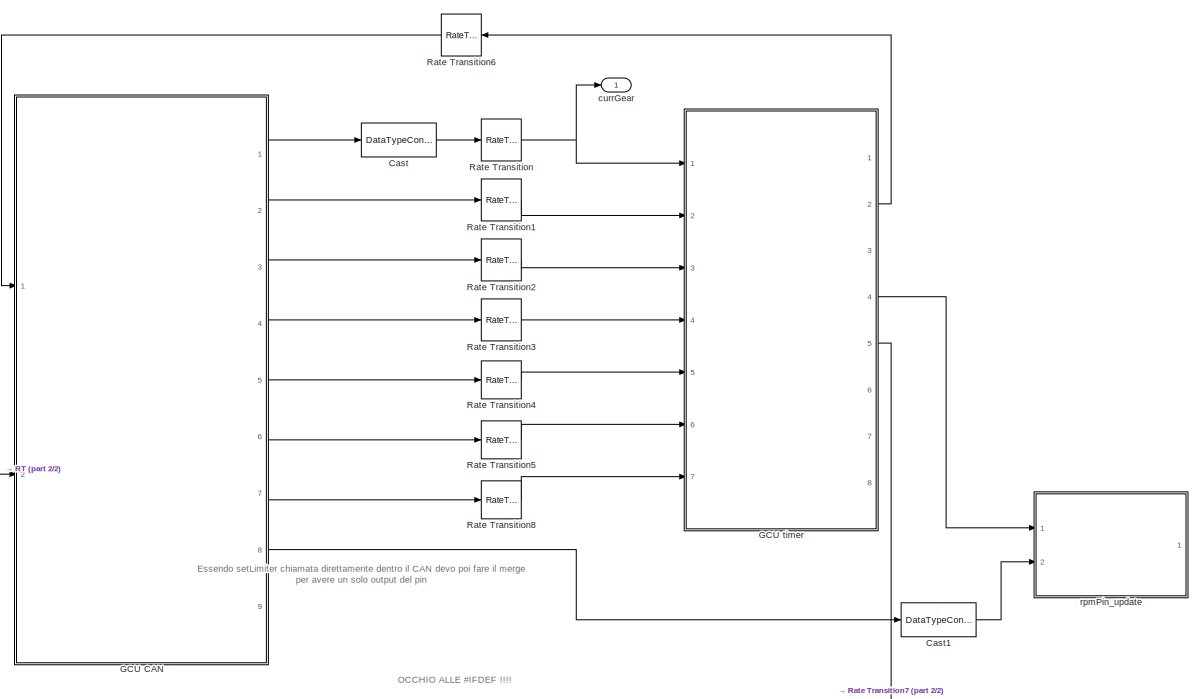
[diagram: root canvas - part 1/2, top right region]
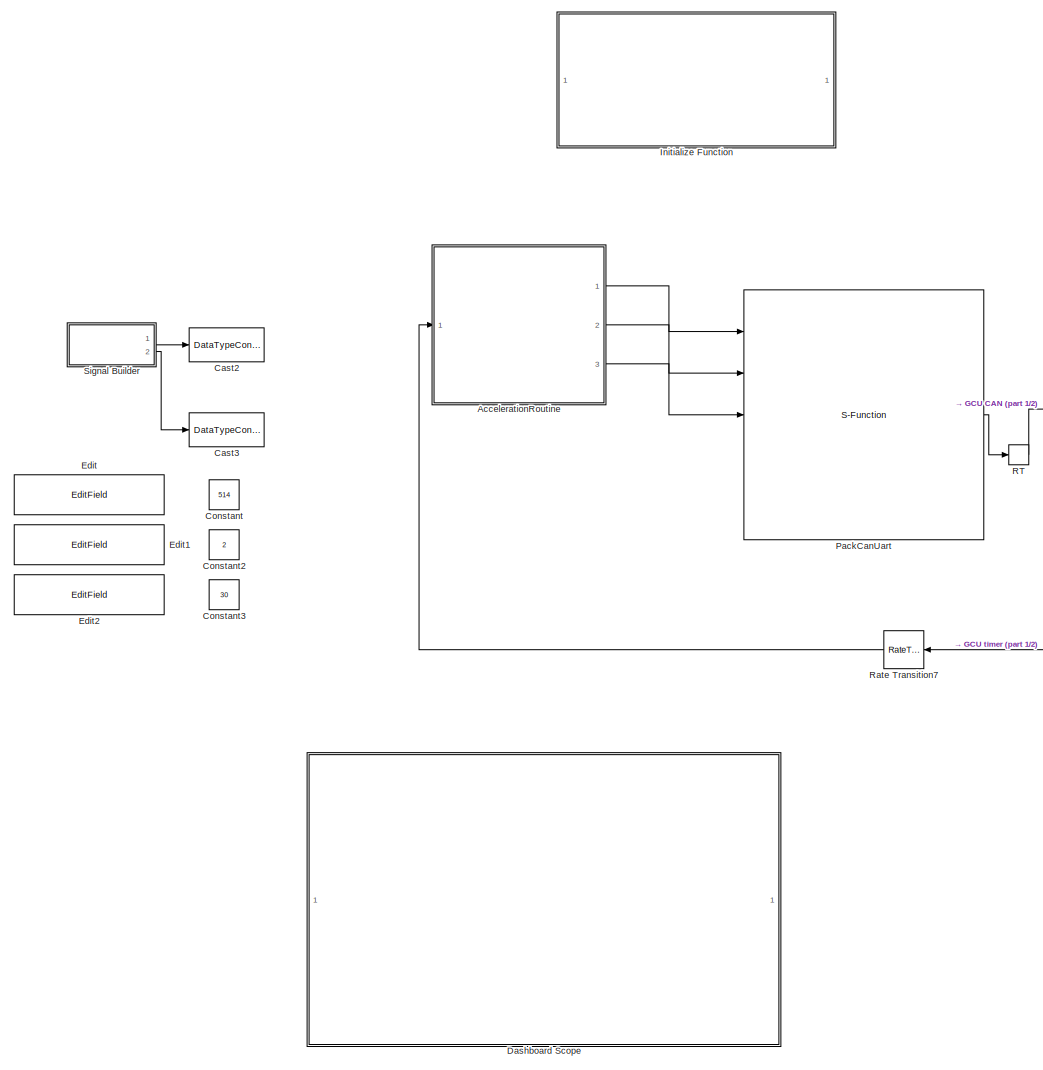
[diagram: root canvas - part 2/2, left side, full height]
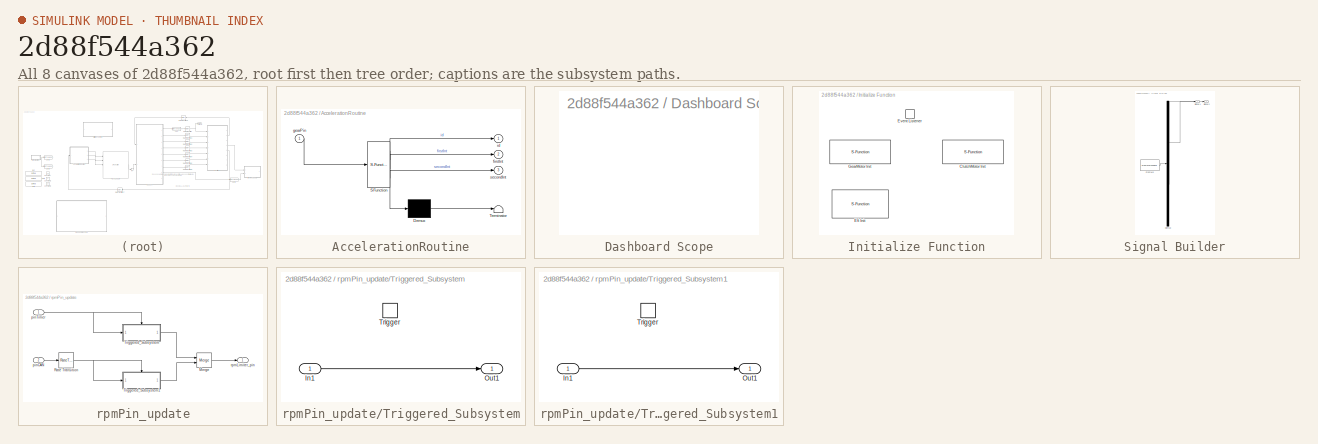
[diagram: thumbnail index - all 8 canvases of the model, root first then tree order]
MODEL slx_2d88f544a362
KIND model
CONFIG AbsTol = auto
CONFIG EnableMultiTasking = off
CONFIG FixedStep = 0.0001
CONFIG MaxStep = auto
CONFIG MinStep = auto
CONFIG RelTol = 1e-3
CONFIG SampleTimeConstraint = Unconstrained
CONFIG Solver = FixedStepAuto
CONFIG SolverName = FixedStepAuto
CONFIG StartTime = 0.0
CONFIG StopTime = 10.0
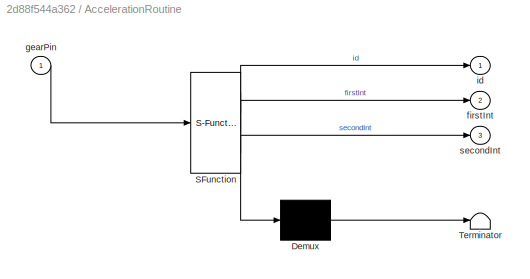
BLOCK [SubSystem] AccelerationRoutine
  ErrorFcn = Stateflow.Translate.translate
  PermitHierarchicalResolution = ExplicitOnly
  Ports = [1, 3]
  RequestExecContextInheritance = off
  SFBlockType = Chart
  SystemSampleTime = [0.01, 0.002]
  TreatAsAtomicUnit = on
BLOCK [Demux] AccelerationRoutine/ Demux 
  Outputs = 1
  Ports = [1, 1]
BLOCK [S-Function] AccelerationRoutine/ SFunction 
  EnableBusSupport = on
  FunctionName = sf_sfun
  PortCounts = [1 4]
  Ports = [1, 4]
  SFcnIsStateOwnerBlock = off
  SFunctionDeploymentMode = off
  Tag = Stateflow S-Function GCU_Model 3
BLOCK [Terminator] AccelerationRoutine/ Terminator 
BLOCK [Outport] AccelerationRoutine/firstInt
  IconDisplay = Port number
  Port = 2
BLOCK [Inport] AccelerationRoutine/gearPin
  IconDisplay = Port number
BLOCK [Outport] AccelerationRoutine/id
  IconDisplay = Port number
BLOCK [Outport] AccelerationRoutine/secondInt
  IconDisplay = Port number
  Port = 3
BLOCK [DataTypeConversion] Cast
  OutDataTypeStr = uint8
  RndMeth = Floor
  SaturateOnIntegerOverflow = off
BLOCK [DataTypeConversion] Cast1
  OutDataTypeStr = uint8
  RndMeth = Floor
  SaturateOnIntegerOverflow = off
BLOCK [DataTypeConversion] Cast2
  Commented = on
  OutDataTypeStr = uint16
  RndMeth = Floor
  SaturateOnIntegerOverflow = off
BLOCK [DataTypeConversion] Cast3
  Commented = on
  OutDataTypeStr = uint16
  RndMeth = Floor
  SaturateOnIntegerOverflow = off
BLOCK [Constant] Constant
  Commented = on
  OutDataTypeStr = uint16
  Value = 514
BLOCK [Constant] Constant2
  Commented = on
  OutDataTypeStr = uint16
  Value = 2
BLOCK [Constant] Constant3
  Commented = on
  OutDataTypeStr = uint16
  Value = 30
BLOCK [SubSystem] Dashboard Scope
  Commented = on
  DialogController = hmiCreateDDGDialog
  IsWebBlock = on
  MaskHideContents = on
  Ports = []
  RequestExecContextInheritance = off
BLOCK [EditField] Edit
  Alignment = Center
  Commented = on
  LabelPosition = Hide
  WebBlockId = 100
BLOCK [EditField] Edit1
  Alignment = Center
  Commented = on
  LabelPosition = Hide
  WebBlockId = 102
BLOCK [EditField] Edit2
  Alignment = Center
  Commented = on
  LabelPosition = Hide
  WebBlockId = 104
BLOCK [ModelReference] GCU CAN
  ModelNameDialog = GCU_CAN_C.slx
  ModelReferenceVersion = 1.5
  Ports = [2, 9]
BLOCK [ModelReference] GCU timer
  ModelNameDialog = GCU_timer_C
  ModelReferenceVersion = 1.9
  Ports = [7, 8]
BLOCK [SubSystem] Initialize Function
  Ports = []
  RequestExecContextInheritance = off
  TreatAsAtomicUnit = on
BLOCK [S-Function] Initialize Function/ClutchMotor Init
  EnableBusSupport = off
  FunctionName = ClutchMotor_init
  Ports = []
  SFcnIsStateOwnerBlock = off
  SFunctionDeploymentMode = off
BLOCK [S-Function] Initialize Function/Efi Init
  EnableBusSupport = off
  FunctionName = Efi_init
  Ports = []
  SFcnIsStateOwnerBlock = off
  SFunctionDeploymentMode = off
BLOCK [EventListener] Initialize Function/Event Listener
  DisableCoverage = on
  EventName = reset
BLOCK [S-Function] Initialize Function/GearMotor Init
  EnableBusSupport = off
  FunctionName = GearMotor_init
  Ports = []
  SFcnIsStateOwnerBlock = off
  SFunctionDeploymentMode = off
BLOCK [S-Function] PackCanUart
  EnableBusSupport = off
  FunctionName = PackCanUART
  Ports = [5, 1]
  SFcnIsStateOwnerBlock = off
  SFunctionDeploymentMode = off
BLOCK [RateTransition] RT
  Deterministic = off
  OutPortSampleTime = 0.01
BLOCK [RateTransition] Rate Transition
  Deterministic = off
BLOCK [RateTransition] Rate Transition1
  Deterministic = off
BLOCK [RateTransition] Rate Transition2
  Deterministic = off
BLOCK [RateTransition] Rate Transition3
  Deterministic = off
BLOCK [RateTransition] Rate Transition4
  Deterministic = off
BLOCK [RateTransition] Rate Transition5
  Deterministic = off
BLOCK [RateTransition] Rate Transition6
  Deterministic = off
BLOCK [RateTransition] Rate Transition7
  Deterministic = off
BLOCK [RateTransition] Rate Transition8
  Deterministic = off
BLOCK [SubSystem] Signal Builder
  ClipboardFcn = sigbuilder_block('clipboard');
  CloseFcn = sigbuilder_block('close');
  Commented = on
  ContinueFcn = sigbuilder_block('continue');
  CopyFcn = sigbuilder_block('copy');
  DeleteFcn = sigbuilder_block('delete');
  LoadFcn = sigbuilder_block('load');
  MaskHideContents = on
  ModelCloseFcn = sigbuilder_block('modelClose');
  NameChangeFcn = sigbuilder_block('namechange');
  OpenFcn = sigbuilder_block('open',[437.25 153 550.5 359.25 ]);
  PauseFcn = sigbuilder_block('pause');
  Ports = [0, 2]
  PreSaveFcn = sigbuilder_block('preSave');
  RequestExecContextInheritance = off
  StartFcn = sigbuilder_block('start');
  StopFcn = sigbuilder_block('stop');
  Tag = STV Subsys
BLOCK [Demux] Signal Builder/Demux
  Outputs = 2
  Ports = [1, 2]
  Tag = STV Demux
BLOCK [FromWorkspace] Signal Builder/FromWs
  SampleTime = 0
  Tag = STV FromWs
  VariableName = tuvar
  ZeroCross = on
BLOCK [Outport] Signal Builder/Signal 1
  IconDisplay = Port number
  Tag = STV Outport
BLOCK [Outport] Signal Builder/Signal 2
  IconDisplay = Port number
  Port = 2
  Tag = STV Outport
BLOCK [Outport] currGear
  IconDisplay = Port number
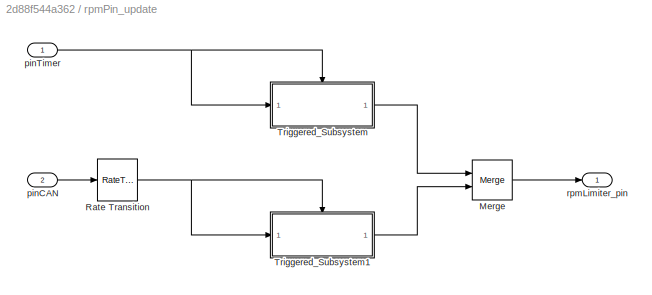
BLOCK [SubSystem] rpmPin_update
  Ports = [2, 1]
  RequestExecContextInheritance = off
BLOCK [Merge] rpmPin_update/Merge
  Ports = [2, 1]
BLOCK [RateTransition] rpmPin_update/Rate Transition
BLOCK [SubSystem] rpmPin_update/Triggered_Subsystem
  Ports = [1, 1, 0, 1]
  RequestExecContextInheritance = off
  TreatAsAtomicUnit = on
BLOCK [Inport] rpmPin_update/Triggered_Subsystem/In1
  IconDisplay = Port number
BLOCK [Outport] rpmPin_update/Triggered_Subsystem/Out1
  IconDisplay = Port number
BLOCK [TriggerPort] rpmPin_update/Triggered_Subsystem/Trigger
  Ports = []
  StatesWhenEnabling = held
  TriggerType = either
  VariantControl = Variant
BLOCK [SubSystem] rpmPin_update/Triggered_Subsystem1
  Ports = [1, 1, 0, 1]
  RequestExecContextInheritance = off
  TreatAsAtomicUnit = on
BLOCK [Inport] rpmPin_update/Triggered_Subsystem1/In1
  IconDisplay = Port number
BLOCK [Outport] rpmPin_update/Triggered_Subsystem1/Out1
  IconDisplay = Port number
BLOCK [TriggerPort] rpmPin_update/Triggered_Subsystem1/Trigger
  Ports = []
  StatesWhenEnabling = held
  TriggerType = either
  VariantControl = Variant
BLOCK [Inport] rpmPin_update/pinCAN
  IconDisplay = Port number
  Port = 2
BLOCK [Inport] rpmPin_update/pinTimer
  IconDisplay = Port number
BLOCK [Outport] rpmPin_update/rpmLimiter_pin
  IconDisplay = Port number
ANNOTATION (root): Essendo setLimiter chiamata direttamente dentro il CAN devo poi fare il merge per avere un solo output del pin
ANNOTATION (root): OCCHIO ALLE #IFDEF !!!!
LINE AccelerationRoutine:1 -> PackCanUart:1
LINE AccelerationRoutine:2 -> PackCanUart:2
LINE AccelerationRoutine:3 -> PackCanUart:3
LINE Cast1:1 -> rpmPin_update:2
LINE Cast:1 -> Rate Transition:1
LINE GCU CAN:1 -> Cast:1
LINE GCU CAN:2 -> Rate Transition1:1
LINE GCU CAN:3 -> Rate Transition2:1
LINE GCU CAN:4 -> Rate Transition3:1
LINE GCU CAN:5 -> Rate Transition4:1
LINE GCU CAN:6 -> Rate Transition5:1
LINE GCU CAN:7 -> Rate Transition8:1
LINE GCU CAN:8 -> Cast1:1
LINE GCU timer:2 -> Rate Transition6:1
LINE GCU timer:4 -> rpmPin_update:1
LINE GCU timer:5 -> Rate Transition7:1
LINE PackCanUart:1 -> RT:1
LINE RT:1 -> GCU CAN:2
LINE Rate Transition1:1 -> GCU timer:2
LINE Rate Transition2:1 -> GCU timer:3
LINE Rate Transition3:1 -> GCU timer:4
LINE Rate Transition4:1 -> GCU timer:5
LINE Rate Transition5:1 -> GCU timer:6
LINE Rate Transition6:1 -> GCU CAN:1
LINE Rate Transition7:1 -> AccelerationRoutine:1
LINE Rate Transition8:1 -> GCU timer:7
NET Rate Transition:1 -> GCU timer:1, currGear:1
LINE Signal Builder:1 -> Cast2:1
LINE Signal Builder:2 -> Cast3:1
LINE rpmPin_update/Merge:1 -> rpmPin_update/rpmLimiter_pin:1
NET rpmPin_update/Rate Transition:1 -> rpmPin_update/Triggered_Subsystem1:1, rpmPin_update/Triggered_Subsystem1:trigger
LINE rpmPin_update/Triggered_Subsystem/In1:1 -> rpmPin_update/Triggered_Subsystem/Out1:1
LINE rpmPin_update/Triggered_Subsystem1/In1:1 -> rpmPin_update/Triggered_Subsystem1/Out1:1
LINE rpmPin_update/Triggered_Subsystem1:1 -> rpmPin_update/Merge:2
LINE rpmPin_update/Triggered_Subsystem:1 -> rpmPin_update/Merge:1
LINE rpmPin_update/pinCAN:1 -> rpmPin_update/Rate Transition:1
NET rpmPin_update/pinTimer:1 -> rpmPin_update/Triggered_Subsystem:1, rpmPin_update/Triggered_Subsystem:trigger
note: NET lines group one-source signal fan-out (src -> all destinations, sorted); 1:1 wires keep LINE
CHART AccelerationRoutine states=9 transitions=29
  STATE_LABEL 'Wait'
  STATE_LABEL 'ActivateAac\nentry:\n%%counter =0;\nid = uint16(514);\nfirstInt = uint16(1);\n%%during:counter = counter + 1;'
  STATE_LABEL 'InsertGear\nentry:\nid = uint16(512);\nfirstInt = uint16(400);\nduring:\n checkGear;\n'
  STATE_LABEL 'Ready\nid = uint16(514);\nfirstInt = uint16(2);'
  STATE_LABEL 'EnterAcceleration\nid = uint16(1000);\nfirstInt = uint16(3);'
  STATE_LABEL 'updateData'
  STATE_LABEL '[gearPin == 0 && lastGearPin == 1]'
  STATE_LABEL '{ currGear = currGear + 1;}'
  STATE_LABEL '[gearPin == 1]'
  STATE_LABEL '{rpm = rpm + 150; wheelSpeed = wheelSpeed + 5;}'
  STATE_LABEL '{rpm = 0; wheelSpeed = 0;}'
  STATE_LABEL '[message == 0]'
  STATE_LABEL '{message = 0; id = 774; firstInt = wheelSpeed;}'
  STATE_LABEL '{message =1; id = 773; firstInt = currGear; secondInt = rpm;}'
  STATE_LABEL '{lastGearPin = gearPin;}'
  STATE_LABEL 'DajeDeGas\nentry:\n id = uint16(0);\n rpm = uint16(0);\n wheelSpeed = uint16(0);\nduring:\n updateData;\n'
  STATE_LABEL 'checkGear'
  STATE_LABEL '[gearPin == 0 && lastGearPin ==1]'
  STATE_LABEL '{currGear = currGear + 1;}'
  STATE_LABEL '{lastGearPin = gearPin}'
  STATE_LABEL 'EXIT\nentry:\nid = uint16(513);\nfirstInt = bitshift(uint16(100), 8);'
